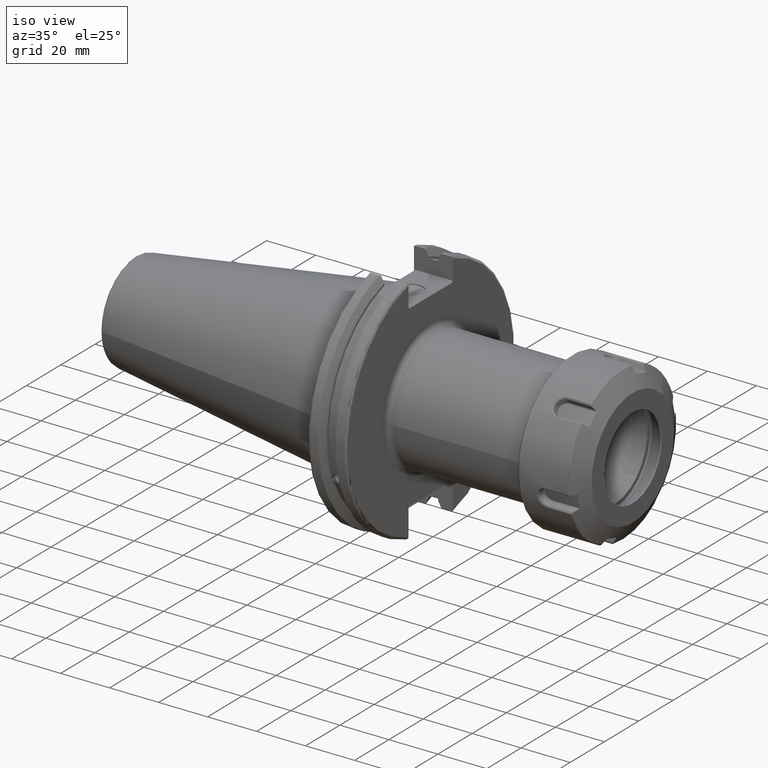
[diagram: clean part render]
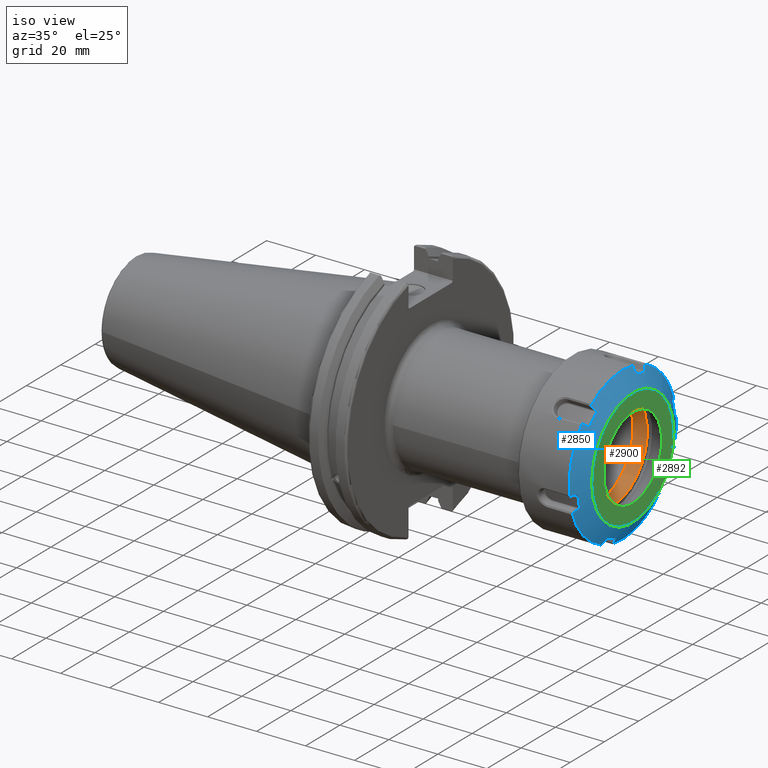
[diagram: same view with three faces highlighted in distinct colors, each labeled with its STEP entity id]
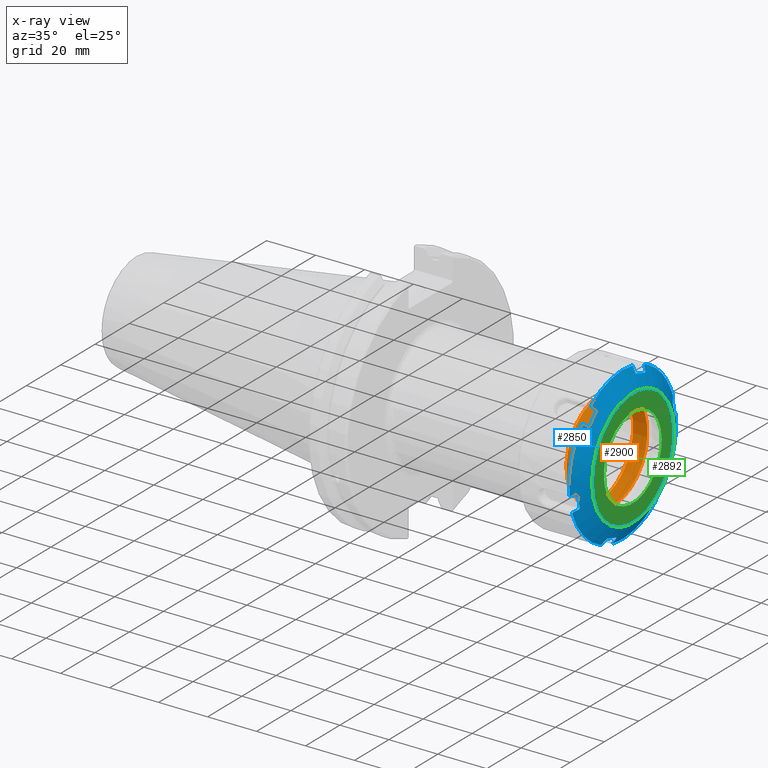
[diagram: x-ray of the same camera — body ghosted, the three highlighted faces saturated]
A machine part, iso view with three faces highlighted in distinct colors.
The next image is the same camera in x-ray (body ghosted, the three faces saturated) — at least one of them is partly hidden behind the body in this view.
Their STEP definitions:

[orange] entity #2900 — the highlighted cylindrical surface (bore or boss wall) has radius 19.45 mm, axis along (-1, 0, 0).
#311=CYLINDRICAL_SURFACE('',#3254,19.45);
#459=FACE_OUTER_BOUND('',#652,.T.);
#652=EDGE_LOOP('',(#2616,#2617,#2618,#2619));
#834=LINE('',#6354,#1010);
#1010=VECTOR('',#3962,19.45);
#1148=CIRCLE('',#3253,19.45);
#1149=CIRCLE('',#3255,19.45);
#1425=VERTEX_POINT('',#6350);
#1426=VERTEX_POINT('',#6353);
#1830=EDGE_CURVE('',#1425,#1425,#1148,.T.);
#1831=EDGE_CURVE('',#1425,#1426,#834,.T.);
#1832=EDGE_CURVE('',#1426,#1426,#1149,.T.);
#2616=ORIENTED_EDGE('',*,*,#1830,.F.);
#2617=ORIENTED_EDGE('',*,*,#1831,.T.);
#2618=ORIENTED_EDGE('',*,*,#1832,.T.);
#2619=ORIENTED_EDGE('',*,*,#1831,.F.);
#2900=ADVANCED_FACE('',(#459),#311,.F.);
#3253=AXIS2_PLACEMENT_3D('',#6351,#3958,#3959);
#3254=AXIS2_PLACEMENT_3D('',#6352,#3960,#3961);
#3255=AXIS2_PLACEMENT_3D('',#6355,#3963,#3964);
#3958=DIRECTION('center_axis',(-1.,0.,0.));
#3959=DIRECTION('ref_axis',(0.,-1.,0.));
#3960=DIRECTION('center_axis',(-1.,0.,0.));
#3961=DIRECTION('ref_axis',(0.,-1.,0.));
#3962=DIRECTION('',(-1.,0.,0.));
#3963=DIRECTION('center_axis',(-1.,0.,0.));
#3964=DIRECTION('ref_axis',(0.,-1.,0.));
#6350=CARTESIAN_POINT('',(5.05,19.45,-2.3819380243416E-15));
#6351=CARTESIAN_POINT('Origin',(5.05,0.,0.));
#6352=CARTESIAN_POINT('Origin',(5.05,0.,0.));
#6353=CARTESIAN_POINT('',(-0.750000000000001,19.45,-2.3819380243416E-15));
#6354=CARTESIAN_POINT('',(5.05,19.45,-2.3819380243416E-15));
#6355=CARTESIAN_POINT('Origin',(-0.75,0.,0.));

[blue] entity #2850 — the highlighted conical surface has half-angle 60 deg.
#218=B_SPLINE_CURVE_WITH_KNOTS('',3,(#5253,#5254,#5255,#5256,#5257),
 .UNSPECIFIED.,.F.,.F.,(4,1,4),(0.,0.5,1.),.UNSPECIFIED.);
#219=B_SPLINE_CURVE_WITH_KNOTS('',3,(#5259,#5260,#5261,#5262,#5263,#5264),
 .UNSPECIFIED.,.F.,.F.,(4,1,1,4),(0.,0.3333333333333,0.6666666666667,1.),
 .UNSPECIFIED.);
#220=B_SPLINE_CURVE_WITH_KNOTS('',3,(#5266,#5267,#5268,#5269,#5270,#5271,
#5272,#5273,#5274,#5275),.UNSPECIFIED.,.F.,.F.,(4,2,2,2,4),(0.00391072992557782,
0.0216953256467931,0.0433906512935862,0.0618817572266058,0.075987374068336),
 .UNSPECIFIED.);
#221=B_SPLINE_CURVE_WITH_KNOTS('',3,(#5277,#5278,#5279,#5280,#5281,#5282),
 .UNSPECIFIED.,.F.,.F.,(4,1,1,4),(0.,0.3333333333333,0.6666666666667,1.),
 .UNSPECIFIED.);
#222=B_SPLINE_CURVE_WITH_KNOTS('',3,(#5284,#5285,#5286,#5287,#5288,#5289,
#5290,#5291,#5292,#5293),.UNSPECIFIED.,.F.,.F.,(4,2,2,2,4),(0.249135864577889,
0.263241481419832,0.281732587352851,0.303427912999644,0.321212508720421),
 .UNSPECIFIED.);
#223=B_SPLINE_CURVE_WITH_KNOTS('',3,(#5295,#5296,#5297,#5298,#5299,#5300),
 .UNSPECIFIED.,.F.,.F.,(4,1,1,4),(0.,0.3333333333333,0.6666666666667,1.),
 .UNSPECIFIED.);
#224=B_SPLINE_CURVE_WITH_KNOTS('',3,(#5302,#5303,#5304,#5305,#5306),
 .UNSPECIFIED.,.F.,.F.,(4,1,4),(0.,0.5,1.),.UNSPECIFIED.);
#225=B_SPLINE_CURVE_WITH_KNOTS('',3,(#5310,#5311,#5312,#5313,#5314),
 .UNSPECIFIED.,.F.,.F.,(4,1,4),(0.,0.5,1.),.UNSPECIFIED.);
#226=B_SPLINE_CURVE_WITH_KNOTS('',3,(#5316,#5317,#5318,#5319,#5320,#5321),
 .UNSPECIFIED.,.F.,.F.,(4,1,1,4),(0.,0.3333333333333,0.6666666666667,1.),
 .UNSPECIFIED.);
#227=B_SPLINE_CURVE_WITH_KNOTS('',3,(#5323,#5324,#5325,#5326,#5327,#5328,
#5329,#5330,#5331,#5332),.UNSPECIFIED.,.F.,.F.,(4,2,2,2,4),(0.00391072992604875,
0.0216953256467931,0.0433906512935862,0.0618817572266058,0.075987374068452),
 .UNSPECIFIED.);
#228=B_SPLINE_CURVE_WITH_KNOTS('',3,(#5334,#5335,#5336,#5337,#5338,#5339),
 .UNSPECIFIED.,.F.,.F.,(4,1,1,4),(0.,0.3333333333333,0.6666666666667,1.),
 .UNSPECIFIED.);
#229=B_SPLINE_CURVE_WITH_KNOTS('',3,(#5341,#5342,#5343,#5344,#5345,#5346,
#5347,#5348,#5349,#5350),.UNSPECIFIED.,.F.,.F.,(4,2,2,2,4),(0.249135864577987,
0.263241481419832,0.281732587352852,0.303427912999645,0.321212508720389),
 .UNSPECIFIED.);
#230=B_SPLINE_CURVE_WITH_KNOTS('',3,(#5352,#5353,#5354,#5355,#5356,#5357),
 .UNSPECIFIED.,.F.,.F.,(4,1,1,4),(0.,0.3333333333333,0.6666666666667,1.),
 .UNSPECIFIED.);
#231=B_SPLINE_CURVE_WITH_KNOTS('',3,(#5359,#5360,#5361,#5362,#5363),
 .UNSPECIFIED.,.F.,.F.,(4,1,4),(0.,0.5,1.),.UNSPECIFIED.);
#232=B_SPLINE_CURVE_WITH_KNOTS('',3,(#5367,#5368,#5369,#5370,#5371),
 .UNSPECIFIED.,.F.,.F.,(4,1,4),(0.,0.5,1.),.UNSPECIFIED.);
#233=B_SPLINE_CURVE_WITH_KNOTS('',3,(#5373,#5374,#5375,#5376,#5377,#5378),
 .UNSPECIFIED.,.F.,.F.,(4,1,1,4),(0.,0.3333333333333,0.6666666666667,1.),
 .UNSPECIFIED.);
#234=B_SPLINE_CURVE_WITH_KNOTS('',3,(#5380,#5381,#5382,#5383,#5384,#5385,
#5386,#5387,#5388,#5389),.UNSPECIFIED.,.F.,.F.,(4,2,2,2,4),(0.00391072992601625,
0.0216953256467931,0.0433906512935863,0.0618817572266058,0.0759873740685485),
 .UNSPECIFIED.);
#235=B_SPLINE_CURVE_WITH_KNOTS('',3,(#5391,#5392,#5393,#5394,#5395,#5396),
 .UNSPECIFIED.,.F.,.F.,(4,1,1,4),(0.,0.3333333333333,0.6666666666667,1.),
 .UNSPECIFIED.);
#236=B_SPLINE_CURVE_WITH_KNOTS('',3,(#5398,#5399,#5400,#5401,#5402,#5403,
#5404,#5405,#5406,#5407),.UNSPECIFIED.,.F.,.F.,(4,2,2,2,4),(0.249135864578103,
0.263241481419833,0.281732587352852,0.303427912999645,0.321212508720861),
 .UNSPECIFIED.);
#237=B_SPLINE_CURVE_WITH_KNOTS('',3,(#5409,#5410,#5411,#5412,#5413,#5414),
 .UNSPECIFIED.,.F.,.F.,(4,1,1,4),(0.,0.3333333333333,0.6666666666667,1.),
 .UNSPECIFIED.);
#238=B_SPLINE_CURVE_WITH_KNOTS('',3,(#5415,#5416,#5417,#5418,#5419),
 .UNSPECIFIED.,.F.,.F.,(4,1,4),(0.,0.5,1.),.UNSPECIFIED.);
#239=B_SPLINE_CURVE_WITH_KNOTS('',3,(#5421,#5422,#5423,#5424,#5425),
 .UNSPECIFIED.,.F.,.F.,(4,1,4),(0.,0.5,1.),.UNSPECIFIED.);
#240=B_SPLINE_CURVE_WITH_KNOTS('',3,(#5427,#5428,#5429,#5430,#5431,#5432),
 .UNSPECIFIED.,.F.,.F.,(4,1,1,4),(0.,0.3333333333333,0.6666666666667,1.),
 .UNSPECIFIED.);
#241=B_SPLINE_CURVE_WITH_KNOTS('',3,(#5434,#5435,#5436,#5437,#5438,#5439,
#5440,#5441,#5442,#5443),.UNSPECIFIED.,.F.,.F.,(4,2,2,2,4),(0.00391072992557702,
0.0216953256467932,0.0433906512935864,0.0618817572266059,0.075987374068335),
 .UNSPECIFIED.);
#242=B_SPLINE_CURVE_WITH_KNOTS('',3,(#5445,#5446,#5447,#5448,#5449,#5450),
 .UNSPECIFIED.,.F.,.F.,(4,1,1,4),(0.,0.3333333333333,0.6666666666667,1.),
 .UNSPECIFIED.);
#243=B_SPLINE_CURVE_WITH_KNOTS('',3,(#5452,#5453,#5454,#5455,#5456,#5457,
#5458,#5459,#5460,#5461),.UNSPECIFIED.,.F.,.F.,(4,2,2,2,4),(0.249135864577889,
0.263241481419832,0.281732587352851,0.303427912999644,0.321212508720422),
 .UNSPECIFIED.);
#244=B_SPLINE_CURVE_WITH_KNOTS('',3,(#5463,#5464,#5465,#5466,#5467,#5468),
 .UNSPECIFIED.,.F.,.F.,(4,1,1,4),(0.,0.3333333333333,0.6666666666667,1.),
 .UNSPECIFIED.);
#245=B_SPLINE_CURVE_WITH_KNOTS('',3,(#5470,#5471,#5472,#5473,#5474),
 .UNSPECIFIED.,.F.,.F.,(4,1,4),(0.,0.5,1.),.UNSPECIFIED.);
#246=B_SPLINE_CURVE_WITH_KNOTS('',3,(#5478,#5479,#5480,#5481,#5482),
 .UNSPECIFIED.,.F.,.F.,(4,1,4),(0.,0.5,1.),.UNSPECIFIED.);
#247=B_SPLINE_CURVE_WITH_KNOTS('',3,(#5484,#5485,#5486,#5487,#5488,#5489),
 .UNSPECIFIED.,.F.,.F.,(4,1,1,4),(0.,0.3333333333333,0.6666666666667,1.),
 .UNSPECIFIED.);
#248=B_SPLINE_CURVE_WITH_KNOTS('',3,(#5491,#5492,#5493,#5494,#5495,#5496,
#5497,#5498,#5499,#5500),.UNSPECIFIED.,.F.,.F.,(4,2,2,2,4),(0.00391072992604798,
0.0216953256467931,0.0433906512935861,0.0618817572266057,0.0759873740684518),
 .UNSPECIFIED.);
#249=B_SPLINE_CURVE_WITH_KNOTS('',3,(#5502,#5503,#5504,#5505,#5506,#5507),
 .UNSPECIFIED.,.F.,.F.,(4,1,1,4),(0.,0.3333333333333,0.6666666666667,1.),
 .UNSPECIFIED.);
#250=B_SPLINE_CURVE_WITH_KNOTS('',3,(#5509,#5510,#5511,#5512,#5513,#5514,
#5515,#5516,#5517,#5518),.UNSPECIFIED.,.F.,.F.,(4,2,2,2,4),(0.249135864577987,
0.263241481419832,0.281732587352852,0.303427912999645,0.32121250872039),
 .UNSPECIFIED.);
#251=B_SPLINE_CURVE_WITH_KNOTS('',3,(#5520,#5521,#5522,#5523,#5524,#5525),
 .UNSPECIFIED.,.F.,.F.,(4,1,1,4),(0.,0.3333333333333,0.6666666666667,1.),
 .UNSPECIFIED.);
#252=B_SPLINE_CURVE_WITH_KNOTS('',3,(#5527,#5528,#5529,#5530,#5531),
 .UNSPECIFIED.,.F.,.F.,(4,1,4),(0.,0.5,1.),.UNSPECIFIED.);
#253=B_SPLINE_CURVE_WITH_KNOTS('',3,(#5535,#5536,#5537,#5538,#5539),
 .UNSPECIFIED.,.F.,.F.,(4,1,4),(0.,0.5,1.),.UNSPECIFIED.);
#254=B_SPLINE_CURVE_WITH_KNOTS('',3,(#5541,#5542,#5543,#5544,#5545,#5546),
 .UNSPECIFIED.,.F.,.F.,(4,1,1,4),(0.,0.3333333333333,0.6666666666667,1.),
 .UNSPECIFIED.);
#255=B_SPLINE_CURVE_WITH_KNOTS('',3,(#5548,#5549,#5550,#5551,#5552,#5553,
#5554,#5555,#5556,#5557),.UNSPECIFIED.,.F.,.F.,(4,2,2,2,4),(0.00391072992601611,
0.0216953256467933,0.0433906512935867,0.0618817572266061,0.0759873740685493),
 .UNSPECIFIED.);
#256=B_SPLINE_CURVE_WITH_KNOTS('',3,(#5559,#5560,#5561,#5562,#5563,#5564),
 .UNSPECIFIED.,.F.,.F.,(4,1,1,4),(0.,0.3333333333333,0.6666666666667,1.),
 .UNSPECIFIED.);
#257=B_SPLINE_CURVE_WITH_KNOTS('',3,(#5566,#5567,#5568,#5569,#5570,#5571,
#5572,#5573,#5574,#5575),.UNSPECIFIED.,.F.,.F.,(4,2,2,2,4),(0.249135864578103,
0.263241481419832,0.281732587352852,0.303427912999645,0.321212508720861),
 .UNSPECIFIED.);
#258=B_SPLINE_CURVE_WITH_KNOTS('',3,(#5577,#5578,#5579,#5580,#5581,#5582),
 .UNSPECIFIED.,.F.,.F.,(4,1,1,4),(0.,0.3333333333333,0.6666666666667,1.),
 .UNSPECIFIED.);
#259=B_SPLINE_CURVE_WITH_KNOTS('',3,(#5584,#5585,#5586,#5587,#5588),
 .UNSPECIFIED.,.F.,.F.,(4,1,4),(0.,0.5,1.),.UNSPECIFIED.);
#409=FACE_OUTER_BOUND('',#599,.T.);
#599=EDGE_LOOP('',(#2360,#2361,#2362,#2363,#2364,#2365,#2366,#2367,#2368,
#2369,#2370,#2371,#2372,#2373,#2374,#2375,#2376,#2377,#2378,#2379,#2380,
#2381,#2382,#2383,#2384,#2385,#2386,#2387,#2388,#2389,#2390,#2391,#2392,
#2393,#2394,#2395,#2396,#2397,#2398,#2399,#2400,#2401,#2402,#2403,#2404,
#2405,#2406,#2407,#2408,#2409,#2410,#2411));
#790=LINE('',#5591,#966);
#966=VECTOR('',#3784,27.62499999999);
#1120=CIRCLE('',#3180,31.25);
#1121=CIRCLE('',#3182,31.25);
#1122=CIRCLE('',#3183,31.25);
#1123=CIRCLE('',#3184,31.25);
#1124=CIRCLE('',#3185,31.25);
#1125=CIRCLE('',#3186,31.25);
#1126=CIRCLE('',#3187,31.25);
#1127=CIRCLE('',#3188,24.);
#1345=VERTEX_POINT('',#5229);
#1346=VERTEX_POINT('',#5230);
#1347=VERTEX_POINT('',#5249);
#1348=VERTEX_POINT('',#5250);
#1349=VERTEX_POINT('',#5252);
#1350=VERTEX_POINT('',#5258);
#1351=VERTEX_POINT('',#5265);
#1352=VERTEX_POINT('',#5276);
#1353=VERTEX_POINT('',#5283);
#1354=VERTEX_POINT('',#5294);
#1355=VERTEX_POINT('',#5301);
#1356=VERTEX_POINT('',#5307);
#1357=VERTEX_POINT('',#5309);
#1358=VERTEX_POINT('',#5315);
#1359=VERTEX_POINT('',#5322);
#1360=VERTEX_POINT('',#5333);
#1361=VERTEX_POINT('',#5340);
#1362=VERTEX_POINT('',#5351);
#1363=VERTEX_POINT('',#5358);
#1364=VERTEX_POINT('',#5364);
#1365=VERTEX_POINT('',#5366);
#1366=VERTEX_POINT('',#5372);
#1367=VERTEX_POINT('',#5379);
#1368=VERTEX_POINT('',#5390);
#1369=VERTEX_POINT('',#5397);
#1370=VERTEX_POINT('',#5408);
#1371=VERTEX_POINT('',#5420);
#1372=VERTEX_POINT('',#5426);
#1373=VERTEX_POINT('',#5433);
#1374=VERTEX_POINT('',#5444);
#1375=VERTEX_POINT('',#5451);
#1376=VERTEX_POINT('',#5462);
#1377=VERTEX_POINT('',#5469);
#1378=VERTEX_POINT('',#5475);
#1379=VERTEX_POINT('',#5477);
#1380=VERTEX_POINT('',#5483);
#1381=VERTEX_POINT('',#5490);
#1382=VERTEX_POINT('',#5501);
#1383=VERTEX_POINT('',#5508);
#1384=VERTEX_POINT('',#5519);
#1385=VERTEX_POINT('',#5526);
#1386=VERTEX_POINT('',#5532);
#1387=VERTEX_POINT('',#5534);
#1388=VERTEX_POINT('',#5540);
#1389=VERTEX_POINT('',#5547);
#1390=VERTEX_POINT('',#5558);
#1391=VERTEX_POINT('',#5565);
#1392=VERTEX_POINT('',#5576);
#1393=VERTEX_POINT('',#5583);
#1394=VERTEX_POINT('',#5590);
#1699=EDGE_CURVE('',#1345,#1346,#1120,.T.);
#1702=EDGE_CURVE('',#1347,#1348,#1121,.T.);
#1703=EDGE_CURVE('',#1347,#1349,#218,.T.);
#1704=EDGE_CURVE('',#1350,#1349,#219,.T.);
#1705=EDGE_CURVE('',#1350,#1351,#220,.T.);
#1706=EDGE_CURVE('',#1352,#1351,#221,.T.);
#1707=EDGE_CURVE('',#1352,#1353,#222,.T.);
#1708=EDGE_CURVE('',#1354,#1353,#223,.T.);
#1709=EDGE_CURVE('',#1354,#1355,#224,.T.);
#1710=EDGE_CURVE('',#1355,#1356,#1122,.T.);
#1711=EDGE_CURVE('',#1356,#1357,#225,.T.);
#1712=EDGE_CURVE('',#1358,#1357,#226,.T.);
#1713=EDGE_CURVE('',#1358,#1359,#227,.T.);
#1714=EDGE_CURVE('',#1360,#1359,#228,.T.);
#1715=EDGE_CURVE('',#1360,#1361,#229,.T.);
#1716=EDGE_CURVE('',#1362,#1361,#230,.T.);
#1717=EDGE_CURVE('',#1362,#1363,#231,.T.);
#1718=EDGE_CURVE('',#1363,#1364,#1123,.T.);
#1719=EDGE_CURVE('',#1364,#1365,#232,.T.);
#1720=EDGE_CURVE('',#1366,#1365,#233,.T.);
#1721=EDGE_CURVE('',#1366,#1367,#234,.T.);
#1722=EDGE_CURVE('',#1368,#1367,#235,.T.);
#1723=EDGE_CURVE('',#1368,#1369,#236,.T.);
#1724=EDGE_CURVE('',#1370,#1369,#237,.T.);
#1725=EDGE_CURVE('',#1370,#1346,#238,.T.);
#1726=EDGE_CURVE('',#1345,#1371,#239,.T.);
#1727=EDGE_CURVE('',#1372,#1371,#240,.T.);
#1728=EDGE_CURVE('',#1372,#1373,#241,.T.);
#1729=EDGE_CURVE('',#1374,#1373,#242,.T.);
#1730=EDGE_CURVE('',#1374,#1375,#243,.T.);
#1731=EDGE_CURVE('',#1376,#1375,#244,.T.);
#1732=EDGE_CURVE('',#1376,#1377,#245,.T.);
#1733=EDGE_CURVE('',#1377,#1378,#1124,.T.);
#1734=EDGE_CURVE('',#1378,#1379,#246,.T.);
#1735=EDGE_CURVE('',#1380,#1379,#247,.T.);
#1736=EDGE_CURVE('',#1380,#1381,#248,.T.);
#1737=EDGE_CURVE('',#1382,#1381,#249,.T.);
#1738=EDGE_CURVE('',#1382,#1383,#250,.T.);
#1739=EDGE_CURVE('',#1384,#1383,#251,.T.);
#1740=EDGE_CURVE('',#1384,#1385,#252,.T.);
#1741=EDGE_CURVE('',#1385,#1386,#1125,.T.);
#1742=EDGE_CURVE('',#1386,#1387,#253,.T.);
#1743=EDGE_CURVE('',#1388,#1387,#254,.T.);
#1744=EDGE_CURVE('',#1388,#1389,#255,.T.);
#1745=EDGE_CURVE('',#1390,#1389,#256,.T.);
#1746=EDGE_CURVE('',#1390,#1391,#257,.T.);
#1747=EDGE_CURVE('',#1392,#1391,#258,.T.);
#1748=EDGE_CURVE('',#1392,#1393,#259,.T.);
#1749=EDGE_CURVE('',#1348,#1393,#1126,.T.);
#1750=EDGE_CURVE('',#1348,#1394,#790,.T.);
#1751=EDGE_CURVE('',#1394,#1394,#1127,.T.);
#2360=ORIENTED_EDGE('',*,*,#1702,.F.);
#2361=ORIENTED_EDGE('',*,*,#1703,.T.);
#2362=ORIENTED_EDGE('',*,*,#1704,.F.);
#2363=ORIENTED_EDGE('',*,*,#1705,.T.);
#2364=ORIENTED_EDGE('',*,*,#1706,.F.);
#2365=ORIENTED_EDGE('',*,*,#1707,.T.);
#2366=ORIENTED_EDGE('',*,*,#1708,.F.);
#2367=ORIENTED_EDGE('',*,*,#1709,.T.);
#2368=ORIENTED_EDGE('',*,*,#1710,.T.);
#2369=ORIENTED_EDGE('',*,*,#1711,.T.);
#2370=ORIENTED_EDGE('',*,*,#1712,.F.);
#2371=ORIENTED_EDGE('',*,*,#1713,.T.);
#2372=ORIENTED_EDGE('',*,*,#1714,.F.);
#2373=ORIENTED_EDGE('',*,*,#1715,.T.);
#2374=ORIENTED_EDGE('',*,*,#1716,.F.);
#2375=ORIENTED_EDGE('',*,*,#1717,.T.);
#2376=ORIENTED_EDGE('',*,*,#1718,.T.);
#2377=ORIENTED_EDGE('',*,*,#1719,.T.);
#2378=ORIENTED_EDGE('',*,*,#1720,.F.);
#2379=ORIENTED_EDGE('',*,*,#1721,.T.);
#2380=ORIENTED_EDGE('',*,*,#1722,.F.);
#2381=ORIENTED_EDGE('',*,*,#1723,.T.);
#2382=ORIENTED_EDGE('',*,*,#1724,.F.);
#2383=ORIENTED_EDGE('',*,*,#1725,.T.);
#2384=ORIENTED_EDGE('',*,*,#1699,.F.);
#2385=ORIENTED_EDGE('',*,*,#1726,.T.);
#2386=ORIENTED_EDGE('',*,*,#1727,.F.);
#2387=ORIENTED_EDGE('',*,*,#1728,.T.);
#2388=ORIENTED_EDGE('',*,*,#1729,.F.);
#2389=ORIENTED_EDGE('',*,*,#1730,.T.);
#2390=ORIENTED_EDGE('',*,*,#1731,.F.);
#2391=ORIENTED_EDGE('',*,*,#1732,.T.);
#2392=ORIENTED_EDGE('',*,*,#1733,.T.);
#2393=ORIENTED_EDGE('',*,*,#1734,.T.);
#2394=ORIENTED_EDGE('',*,*,#1735,.F.);
#2395=ORIENTED_EDGE('',*,*,#1736,.T.);
#2396=ORIENTED_EDGE('',*,*,#1737,.F.);
#2397=ORIENTED_EDGE('',*,*,#1738,.T.);
#2398=ORIENTED_EDGE('',*,*,#1739,.F.);
#2399=ORIENTED_EDGE('',*,*,#1740,.T.);
#2400=ORIENTED_EDGE('',*,*,#1741,.T.);
#2401=ORIENTED_EDGE('',*,*,#1742,.T.);
#2402=ORIENTED_EDGE('',*,*,#1743,.F.);
#2403=ORIENTED_EDGE('',*,*,#1744,.T.);
#2404=ORIENTED_EDGE('',*,*,#1745,.F.);
#2405=ORIENTED_EDGE('',*,*,#1746,.T.);
#2406=ORIENTED_EDGE('',*,*,#1747,.F.);
#2407=ORIENTED_EDGE('',*,*,#1748,.T.);
#2408=ORIENTED_EDGE('',*,*,#1749,.F.);
#2409=ORIENTED_EDGE('',*,*,#1750,.T.);
#2410=ORIENTED_EDGE('',*,*,#1751,.F.);
#2411=ORIENTED_EDGE('',*,*,#1750,.F.);
#2751=CONICAL_SURFACE('',#3181,27.62499999999,1.0471975511966);
#2850=ADVANCED_FACE('',(#409),#2751,.T.);
#3180=AXIS2_PLACEMENT_3D('',#5231,#3768,#3769);
#3181=AXIS2_PLACEMENT_3D('',#5248,#3770,#3771);
#3182=AXIS2_PLACEMENT_3D('',#5251,#3772,#3773);
#3183=AXIS2_PLACEMENT_3D('',#5308,#3774,#3775);
#3184=AXIS2_PLACEMENT_3D('',#5365,#3776,#3777);
#3185=AXIS2_PLACEMENT_3D('',#5476,#3778,#3779);
#3186=AXIS2_PLACEMENT_3D('',#5533,#3780,#3781);
#3187=AXIS2_PLACEMENT_3D('',#5589,#3782,#3783);
#3188=AXIS2_PLACEMENT_3D('',#5592,#3785,#3786);
#3768=DIRECTION('center_axis',(-1.,0.,0.));
#3769=DIRECTION('ref_axis',(0.,2.455899008826E-11,-1.));
#3770=DIRECTION('center_axis',(-1.,0.,0.));
#3771=DIRECTION('ref_axis',(0.,0.,-1.));
#3772=DIRECTION('center_axis',(-1.,0.,0.));
#3773=DIRECTION('ref_axis',(0.,-0.394688403095903,0.918815032779507));
#3774=DIRECTION('center_axis',(1.,0.,0.));
#3775=DIRECTION('ref_axis',(0.,-0.598372958218185,0.801217700049879));
#3776=DIRECTION('center_axis',(1.,0.,0.));
#3777=DIRECTION('ref_axis',(0.,-0.993061361314034,-0.117597332729604));
#3778=DIRECTION('center_axis',(1.,0.,0.));
#3779=DIRECTION('ref_axis',(0.,0.598372958218185,-0.801217700049879));
#3780=DIRECTION('center_axis',(1.,0.,0.));
#3781=DIRECTION('ref_axis',(0.,0.993061361314034,0.117597332729604));
#3782=DIRECTION('center_axis',(-1.,0.,0.));
#3783=DIRECTION('ref_axis',(0.,-0.394688403095903,0.918815032779507));
#3784=DIRECTION('',(0.5,-1.06057523872491E-16,-0.866025403784439));
#3785=DIRECTION('center_axis',(1.,0.,0.));
#3786=DIRECTION('ref_axis',(0.,0.,1.));
#5229=CARTESIAN_POINT('',(8.564210548375,12.33401259675,-28.71296977436));
#5230=CARTESIAN_POINT('',(8.564210548375,-12.33401259675,-28.71296977436));
#5231=CARTESIAN_POINT('Origin',(8.564210548375,1.234443973541E-14,0.));
#5248=CARTESIAN_POINT('Origin',(10.6571052742,1.234443973541E-14,0.));
#5249=CARTESIAN_POINT('',(8.564210548375,-12.33401259675,28.71296977436));
#5250=CARTESIAN_POINT('',(8.56421054837923,1.6171460982746E-14,31.2500000000045));
#5251=CARTESIAN_POINT('Origin',(8.564210548375,1.234443973541E-14,0.));
#5252=CARTESIAN_POINT('',(8.692310057583,-12.46455901979,28.41442095568));
#5253=CARTESIAN_POINT('Ctrl Pts',(8.564210548375,-12.33401259675,28.71296977436));
#5254=CARTESIAN_POINT('Ctrl Pts',(8.585754667561,-12.35587845273,28.66296437918));
#5255=CARTESIAN_POINT('Ctrl Pts',(8.628648493396,-12.39950207942,28.56320077087));
#5256=CARTESIAN_POINT('Ctrl Pts',(8.671154125862,-12.44290943521,28.46393175613));
#5257=CARTESIAN_POINT('Ctrl Pts',(8.692310057583,-12.46455901979,28.41442095568));
#5258=CARTESIAN_POINT('',(9.819366088588,-11.79541827671,26.57597187362));
#5259=CARTESIAN_POINT('Ctrl Pts',(9.819366088588,-11.79541827671,26.57597187362));
#5260=CARTESIAN_POINT('Ctrl Pts',(9.695618002269,-11.86889927294,26.77785925153));
#5261=CARTESIAN_POINT('Ctrl Pts',(9.447134475167,-12.01643987048,27.18322371173));
#5262=CARTESIAN_POINT('Ctrl Pts',(9.071443925176,-12.23948943061,27.79604734159));
#5263=CARTESIAN_POINT('Ctrl Pts',(8.819016266955,-12.38934317116,28.20776710997));
#5264=CARTESIAN_POINT('Ctrl Pts',(8.692310057583,-12.46455901979,28.41442095568));
#5265=CARTESIAN_POINT('',(10.08461556535,-12.0152645871,25.97194910006));
#5266=CARTESIAN_POINT('Ctrl Pts',(9.81936608859121,-11.7954182767103,26.5759718736218));
#5267=CARTESIAN_POINT('Ctrl Pts',(9.84967734944193,-11.7774196012497,26.5265209192167));
#5268=CARTESIAN_POINT('Ctrl Pts',(9.88117393407767,-11.7665978772285,26.4716423706257));
#5269=CARTESIAN_POINT('Ctrl Pts',(9.9471335364265,-11.7639010935977,26.3477788044782));
#5270=CARTESIAN_POINT('Ctrl Pts',(9.98071243271829,-11.7769378903239,26.2782649782907));
#5271=CARTESIAN_POINT('Ctrl Pts',(10.0302355972456,-11.8239630582421,26.1630262231733));
#5272=CARTESIAN_POINT('Ctrl Pts',(10.0508461046287,-11.8574947477832,26.1086774041364));
#5273=CARTESIAN_POINT('Ctrl Pts',(10.0753423636963,-11.9344855401506,26.026876902305));
#5274=CARTESIAN_POINT('Ctrl Pts',(10.0821136841068,-11.9736466814781,25.9959772090718));
#5275=CARTESIAN_POINT('Ctrl Pts',(10.0846155653589,-12.0152645870986,25.9719491000586));
#5276=CARTESIAN_POINT('',(10.08461556535,-16.4847354129,23.39149891565));
#5277=CARTESIAN_POINT('Ctrl Pts',(10.08461556535,-16.4847354129,23.39149891565));
#5278=CARTESIAN_POINT('Ctrl Pts',(10.11446714737,-15.98816495339,23.67819400412));
#5279=CARTESIAN_POINT('Ctrl Pts',(10.15441839857,-14.9950043063,24.25159557107));
#5280=CARTESIAN_POINT('Ctrl Pts',(10.15441825606,-13.50499019773,25.11185561775));
#5281=CARTESIAN_POINT('Ctrl Pts',(10.11446700596,-12.51183269442,25.68525536963));
#5282=CARTESIAN_POINT('Ctrl Pts',(10.08461556535,-12.0152645871,25.97194910006));
#5283=CARTESIAN_POINT('',(9.819366088588,-17.11775763446,23.5031178127));
#5284=CARTESIAN_POINT('Ctrl Pts',(10.0846155653584,-16.4847354128994,23.3914989156481));
#5285=CARTESIAN_POINT('Ctrl Pts',(10.0821136841064,-16.5263533185205,23.3674708066346));
#5286=CARTESIAN_POINT('Ctrl Pts',(10.0753423636959,-16.572693808494,23.3490061100199));
#5287=CARTESIAN_POINT('Ctrl Pts',(10.0508461046282,-16.6820305173067,23.3232303788877));
#5288=CARTESIAN_POINT('Ctrl Pts',(10.030235597245,-16.745863820029,23.3213654934318));
#5289=CARTESIAN_POINT('Ctrl Pts',(9.9807124327177,-16.8691760934203,23.3382598809561));
#5290=CARTESIAN_POINT('Ctrl Pts',(9.94713353642591,-16.935895231176,23.361726596901));
#5291=CARTESIAN_POINT('Ctrl Pts',(9.88117393407782,-17.0418158342465,23.4259938631068));
#5292=CARTESIAN_POINT('Ctrl Pts',(9.84967734944289,-17.0839311894376,23.4628050253163));
#5293=CARTESIAN_POINT('Ctrl Pts',(9.81936608859286,-17.1177576344631,23.503117812701));
#5294=CARTESIAN_POINT('',(8.692310057583,-18.37533087155,25.00183523595));
#5295=CARTESIAN_POINT('Ctrl Pts',(8.692310057583,-18.37533087155,25.00183523595));
#5296=CARTESIAN_POINT('Ctrl Pts',(8.818984634961,-18.23400660587,24.83341153461));
#5297=CARTESIAN_POINT('Ctrl Pts',(9.071370123408,-17.95242075039,24.49783057972));
#5298=CARTESIAN_POINT('Ctrl Pts',(9.447060850792,-17.53322451115,23.9982519556));
#5299=CARTESIAN_POINT('Ctrl Pts',(9.695586451921,-17.25589194355,23.66773987181));
#5300=CARTESIAN_POINT('Ctrl Pts',(9.819366088588,-17.11775763446,23.5031178127));
#5301=CARTESIAN_POINT('',(8.564210548375,-18.69915494432,25.03805312656));
#5302=CARTESIAN_POINT('Ctrl Pts',(8.692310057583,-18.37533087155,25.00183523595));
#5303=CARTESIAN_POINT('Ctrl Pts',(8.67114013399,-18.42906879188,25.00784551833));
#5304=CARTESIAN_POINT('Ctrl Pts',(8.628620408783,-18.53677743628,25.01989212088));
#5305=CARTESIAN_POINT('Ctrl Pts',(8.585740575441,-18.64495155169,25.03199078373));
#5306=CARTESIAN_POINT('Ctrl Pts',(8.564210548375,-18.69915494432,25.03805312656));
#5307=CARTESIAN_POINT('',(8.564210548375,-31.03316754106,3.674916647801));
#5308=CARTESIAN_POINT('Origin',(8.564210548375,0.,0.));
#5309=CARTESIAN_POINT('',(8.692310057583,-30.83988989134,3.41258571973));
#5310=CARTESIAN_POINT('Ctrl Pts',(8.564210548375,-31.03316754106,3.674916647801));
#5311=CARTESIAN_POINT('Ctrl Pts',(8.585707138203,-31.00086594593,3.63107449925));
#5312=CARTESIAN_POINT('Ctrl Pts',(8.628553770502,-30.93635143832,3.543510568928));
#5313=CARTESIAN_POINT('Ctrl Pts',(8.671106934616,-30.87201420827,3.456187252992));
#5314=CARTESIAN_POINT('Ctrl Pts',(8.692310057583,-30.83988989134,3.41258571973));
#5315=CARTESIAN_POINT('',(9.819366088588,-28.91317591117,3.072854060917));
#5316=CARTESIAN_POINT('Ctrl Pts',(9.819366088588,-28.91317591117,3.072854060917));
#5317=CARTESIAN_POINT('Ctrl Pts',(9.695618003236,-29.1247560056,3.110161340148));
#5318=CARTESIAN_POINT('Ctrl Pts',(9.447134477423,-29.5495822225,3.185069664299));
#5319=CARTESIAN_POINT('Ctrl Pts',(9.071443927428,-30.19182783406,3.298314893859));
#5320=CARTESIAN_POINT('Ctrl Pts',(8.81901626792,-30.6233144852,3.37439763227));
#5321=CARTESIAN_POINT('Ctrl Pts',(8.692310057583,-30.83988989134,3.41258571973));
#5322=CARTESIAN_POINT('',(10.08461556535,-28.5,2.580450184411));
#5323=CARTESIAN_POINT('Ctrl Pts',(9.81936608859145,-28.9131759111718,3.07285406091804));
#5324=CARTESIAN_POINT('Ctrl Pts',(9.84967734944143,-28.8613507906866,3.0637158938986));
#5325=CARTESIAN_POINT('Ctrl Pts',(9.88117393407629,-28.8084137114749,3.04564850751846));
#5326=CARTESIAN_POINT('Ctrl Pts',(9.94713353642432,-28.6997963247737,2.98605220757819));
#5327=CARTESIAN_POINT('Ctrl Pts',(9.98071243271612,-28.6461139837442,2.94000509733561));
#5328=CARTESIAN_POINT('Ctrl Pts',(10.0302355972434,-28.5698268782711,2.84166072974249));
#5329=CARTESIAN_POINT('Ctrl Pts',(10.0508461046266,-28.53952526509,2.78544702524961));
#5330=CARTESIAN_POINT('Ctrl Pts',(10.0753423636942,-28.5071793486453,2.67787079228586));
#5331=CARTESIAN_POINT('Ctrl Pts',(10.0821136841048,-28.5,2.62850640243802));
#5332=CARTESIAN_POINT('Ctrl Pts',(10.0846155653567,-28.5,2.58045018441135));
#5333=CARTESIAN_POINT('',(10.08461556535,-28.5,-2.580450184411));
#5334=CARTESIAN_POINT('Ctrl Pts',(10.08461556535,-28.5,-2.580450184411));
#5335=CARTESIAN_POINT('Ctrl Pts',(10.11446714736,-28.5,-2.007060007513));
#5336=CARTESIAN_POINT('Ctrl Pts',(10.15441839857,-28.5,-0.8602568736807));
#5337=CARTESIAN_POINT('Ctrl Pts',(10.15441825606,-28.5,0.8602632198779));
#5338=CARTESIAN_POINT('Ctrl Pts',(10.11446700596,-28.5,2.007062723588));
#5339=CARTESIAN_POINT('Ctrl Pts',(10.08461556535,-28.5,2.580450184411));
#5340=CARTESIAN_POINT('',(9.819366088588,-28.91317591117,-3.072854060917));
#5341=CARTESIAN_POINT('Ctrl Pts',(10.0846155653567,-28.5,-2.58045018441136));
#5342=CARTESIAN_POINT('Ctrl Pts',(10.0821136841048,-28.5,-2.62850640243802));
#5343=CARTESIAN_POINT('Ctrl Pts',(10.0753423636942,-28.5071793486453,-2.67787079228586));
#5344=CARTESIAN_POINT('Ctrl Pts',(10.0508461046266,-28.53952526509,-2.78544702524961));
#5345=CARTESIAN_POINT('Ctrl Pts',(10.0302355972434,-28.5698268782711,-2.84166072974249));
#5346=CARTESIAN_POINT('Ctrl Pts',(9.98071243271612,-28.6461139837442,-2.94000509733561));
#5347=CARTESIAN_POINT('Ctrl Pts',(9.94713353642432,-28.6997963247737,-2.98605220757819));
#5348=CARTESIAN_POINT('Ctrl Pts',(9.88117393407629,-28.8084137114749,-3.04564850751846));
#5349=CARTESIAN_POINT('Ctrl Pts',(9.84967734944143,-28.8613507906866,-3.0637158938986));
#5350=CARTESIAN_POINT('Ctrl Pts',(9.81936608859145,-28.9131759111718,-3.07285406091804));
#5351=CARTESIAN_POINT('',(8.692310057583,-30.83988989134,-3.41258571973));
#5352=CARTESIAN_POINT('Ctrl Pts',(8.692310057583,-30.83988989134,-3.41258571973));
#5353=CARTESIAN_POINT('Ctrl Pts',(8.818984635918,-30.6233685529,-3.374407165864));
#5354=CARTESIAN_POINT('Ctrl Pts',(9.071370125642,-30.19195399102,-3.298337138734));
#5355=CARTESIAN_POINT('Ctrl Pts',(9.44706085303,-29.54970809172,-3.185091858438));
#5356=CARTESIAN_POINT('Ctrl Pts',(9.69558645288,-29.12480994929,-3.110170851874));
#5357=CARTESIAN_POINT('Ctrl Pts',(9.819366088588,-28.91317591117,-3.072854060917));
#5358=CARTESIAN_POINT('',(8.564210548375,-31.03316754106,-3.674916647801));
#5359=CARTESIAN_POINT('Ctrl Pts',(8.692310057583,-30.83988989134,-3.41258571973));
#5360=CARTESIAN_POINT('Ctrl Pts',(8.671140365126,-30.87196355854,-3.456118507387));
#5361=CARTESIAN_POINT('Ctrl Pts',(8.628620872724,-30.93625019478,-3.543373153588));
#5362=CARTESIAN_POINT('Ctrl Pts',(8.585740808234,-31.00081535205,-3.631005829452));
#5363=CARTESIAN_POINT('Ctrl Pts',(8.564210548375,-31.03316754106,-3.674916647801));
#5364=CARTESIAN_POINT('',(8.564210548375,-18.69915494432,-25.03805312656));
#5365=CARTESIAN_POINT('Origin',(8.564210548375,0.,0.));
#5366=CARTESIAN_POINT('',(8.692310057583,-18.37533087155,-25.00183523595));
#5367=CARTESIAN_POINT('Ctrl Pts',(8.564210548375,-18.69915494432,-25.03805312656));
#5368=CARTESIAN_POINT('Ctrl Pts',(8.585761912228,-18.6448978348,-25.0319847758));
#5369=CARTESIAN_POINT('Ctrl Pts',(8.628662931494,-18.53666994317,-25.01988009839));
#5370=CARTESIAN_POINT('Ctrl Pts',(8.671161318992,-18.42901501568,-25.00783950377));
#5371=CARTESIAN_POINT('Ctrl Pts',(8.692310057583,-18.37533087155,-25.00183523595));
#5372=CARTESIAN_POINT('',(9.819366088588,-17.11775763446,-23.5031178127));
#5373=CARTESIAN_POINT('Ctrl Pts',(9.819366088588,-17.11775763446,-23.5031178127));
#5374=CARTESIAN_POINT('Ctrl Pts',(9.695618489655,-17.25585619041,-23.66769726288));
#5375=CARTESIAN_POINT('Ctrl Pts',(9.447135612516,-17.53314108674,-23.99815253426));
#5376=CARTESIAN_POINT('Ctrl Pts',(9.071445066039,-17.95233713441,-24.49773093007));
#5377=CARTESIAN_POINT('Ctrl Pts',(8.819016755941,-18.23397077016,-24.83336882727));
#5378=CARTESIAN_POINT('Ctrl Pts',(8.692310057583,-18.37533087155,-25.00183523595));
#5379=CARTESIAN_POINT('',(10.08461556535,-16.4847354129,-23.39149891565));
#5380=CARTESIAN_POINT('Ctrl Pts',(9.81936608859287,-17.1177576344631,-23.503117812701));
#5381=CARTESIAN_POINT('Ctrl Pts',(9.8496773494429,-17.0839311894376,-23.4628050253163));
#5382=CARTESIAN_POINT('Ctrl Pts',(9.88117393407782,-17.0418158342465,-23.4259938631068));
#5383=CARTESIAN_POINT('Ctrl Pts',(9.94713353642591,-16.935895231176,-23.361726596901));
#5384=CARTESIAN_POINT('Ctrl Pts',(9.9807124327177,-16.8691760934203,-23.3382598809561));
#5385=CARTESIAN_POINT('Ctrl Pts',(10.030235597245,-16.745863820029,-23.3213654934318));
#5386=CARTESIAN_POINT('Ctrl Pts',(10.0508461046281,-16.6820305173067,-23.3232303788877));
#5387=CARTESIAN_POINT('Ctrl Pts',(10.0753423636959,-16.572693808494,-23.3490061100199));
#5388=CARTESIAN_POINT('Ctrl Pts',(10.0821136841064,-16.5263533185206,-23.3674708066346));
#5389=CARTESIAN_POINT('Ctrl Pts',(10.0846155653584,-16.4847354128994,-23.3914989156481));
#5390=CARTESIAN_POINT('',(10.08461556535,-12.0152645871,-25.97194910006));
#5391=CARTESIAN_POINT('Ctrl Pts',(10.08461556535,-12.0152645871,-25.97194910006));
#5392=CARTESIAN_POINT('Ctrl Pts',(10.11446714736,-12.51183504657,-25.68525401161));
#5393=CARTESIAN_POINT('Ctrl Pts',(10.15441839857,-13.50499569361,-25.1118524447));
#5394=CARTESIAN_POINT('Ctrl Pts',(10.15441825606,-14.99500980236,-24.25159239792));
#5395=CARTESIAN_POINT('Ctrl Pts',(10.11446700596,-15.98816730562,-23.67819264606));
#5396=CARTESIAN_POINT('Ctrl Pts',(10.08461556535,-16.4847354129,-23.39149891565));
#5397=CARTESIAN_POINT('',(9.819366088588,-11.79541827671,-26.57597187362));
#5398=CARTESIAN_POINT('Ctrl Pts',(10.0846155653589,-12.0152645870986,-25.9719491000586));
#5399=CARTESIAN_POINT('Ctrl Pts',(10.0821136841068,-11.9736466814781,-25.9959772090719));
#5400=CARTESIAN_POINT('Ctrl Pts',(10.0753423636963,-11.9344855401506,-26.026876902305));
#5401=CARTESIAN_POINT('Ctrl Pts',(10.0508461046287,-11.8574947477832,-26.1086774041364));
#5402=CARTESIAN_POINT('Ctrl Pts',(10.0302355972456,-11.8239630582421,-26.1630262231733));
#5403=CARTESIAN_POINT('Ctrl Pts',(9.98071243271829,-11.7769378903239,-26.2782649782907));
#5404=CARTESIAN_POINT('Ctrl Pts',(9.9471335364265,-11.7639010935977,-26.3477788044782));
#5405=CARTESIAN_POINT('Ctrl Pts',(9.88117393407767,-11.7665978772285,-26.4716423706257));
#5406=CARTESIAN_POINT('Ctrl Pts',(9.84967734944193,-11.7774196012497,-26.5265209192167));
#5407=CARTESIAN_POINT('Ctrl Pts',(9.81936608859121,-11.7954182767103,-26.5759718736219));
#5408=CARTESIAN_POINT('',(8.692310057583,-12.46455901979,-28.41442095568));
#5409=CARTESIAN_POINT('Ctrl Pts',(8.692310057583,-12.46455901979,-28.41442095568));
#5410=CARTESIAN_POINT('Ctrl Pts',(8.818985113606,-12.38936166453,-28.2078179201));
#5411=CARTESIAN_POINT('Ctrl Pts',(9.071371240147,-12.23953258147,-27.79616589762));
#5412=CARTESIAN_POINT('Ctrl Pts',(9.447061964272,-12.01648292327,-27.1833419983));
#5413=CARTESIAN_POINT('Ctrl Pts',(9.695586929079,-11.86891772405,-26.77790994552));
#5414=CARTESIAN_POINT('Ctrl Pts',(9.819366088588,-11.79541827671,-26.57597187362));
#5415=CARTESIAN_POINT('Ctrl Pts',(8.692310057583,-12.46455901979,-28.41442095568));
#5416=CARTESIAN_POINT('Ctrl Pts',(8.671155719812,-12.44291106636,-28.46392802584));
#5417=CARTESIAN_POINT('Ctrl Pts',(8.628651692785,-12.39950533991,-28.5631933144));
#5418=CARTESIAN_POINT('Ctrl Pts',(8.585756272932,-12.35588008208,-28.662960653));
#5419=CARTESIAN_POINT('Ctrl Pts',(8.564210548375,-12.33401259675,-28.71296977436));
#5420=CARTESIAN_POINT('',(8.692310057583,12.46455901979,-28.41442095568));
#5421=CARTESIAN_POINT('Ctrl Pts',(8.564210548375,12.33401259675,-28.71296977436));
#5422=CARTESIAN_POINT('Ctrl Pts',(8.585756390059,12.35588020095,-28.66296038114));
#5423=CARTESIAN_POINT('Ctrl Pts',(8.628651926211,12.39950557779,-28.56319277038));
#5424=CARTESIAN_POINT('Ctrl Pts',(8.671155836106,12.44291118536,-28.46392775368));
#5425=CARTESIAN_POINT('Ctrl Pts',(8.692310057583,12.46455901979,-28.41442095568));
#5426=CARTESIAN_POINT('',(9.819366088588,11.79541827671,-26.57597187362));
#5427=CARTESIAN_POINT('Ctrl Pts',(9.819366088588,11.79541827671,-26.57597187362));
#5428=CARTESIAN_POINT('Ctrl Pts',(9.695618489655,11.86889898353,-26.77785845639));
#5429=CARTESIAN_POINT('Ctrl Pts',(9.447135612516,12.01643919519,-27.18322185638));
#5430=CARTESIAN_POINT('Ctrl Pts',(9.071445066039,12.23948875331,-27.79604548073));
#5431=CARTESIAN_POINT('Ctrl Pts',(8.819016755941,12.38934288088,-28.20776631245));
#5432=CARTESIAN_POINT('Ctrl Pts',(8.692310057583,12.46455901979,-28.41442095568));
#5433=CARTESIAN_POINT('',(10.08461556535,12.0152645871,-25.97194910006));
#5434=CARTESIAN_POINT('Ctrl Pts',(9.81936608859122,11.7954182767103,-26.5759718736218));
#5435=CARTESIAN_POINT('Ctrl Pts',(9.84967734944194,11.7774196012497,-26.5265209192167));
#5436=CARTESIAN_POINT('Ctrl Pts',(9.88117393407768,11.7665978772285,-26.4716423706257));
#5437=CARTESIAN_POINT('Ctrl Pts',(9.94713353642651,11.7639010935977,-26.3477788044782));
#5438=CARTESIAN_POINT('Ctrl Pts',(9.9807124327183,11.7769378903239,-26.2782649782907));
#5439=CARTESIAN_POINT('Ctrl Pts',(10.0302355972456,11.8239630582421,-26.1630262231733));
#5440=CARTESIAN_POINT('Ctrl Pts',(10.0508461046288,11.8574947477832,-26.1086774041363));
#5441=CARTESIAN_POINT('Ctrl Pts',(10.0753423636963,11.9344855401506,-26.026876902305));
#5442=CARTESIAN_POINT('Ctrl Pts',(10.0821136841068,11.9736466814781,-25.9959772090718));
#5443=CARTESIAN_POINT('Ctrl Pts',(10.0846155653589,12.0152645870986,-25.9719491000586));
#5444=CARTESIAN_POINT('',(10.08461556535,16.4847354129,-23.39149891565));
#5445=CARTESIAN_POINT('Ctrl Pts',(10.08461556535,16.4847354129,-23.39149891565));
#5446=CARTESIAN_POINT('Ctrl Pts',(10.11446714736,15.98816495343,-23.6781940041));
#5447=CARTESIAN_POINT('Ctrl Pts',(10.15441839857,14.99500430639,-24.25159557102));
#5448=CARTESIAN_POINT('Ctrl Pts',(10.15441825606,13.50499019764,-25.1118556178));
#5449=CARTESIAN_POINT('Ctrl Pts',(10.11446700596,12.51183269438,-25.68525536965));
#5450=CARTESIAN_POINT('Ctrl Pts',(10.08461556535,12.0152645871,-25.97194910006));
#5451=CARTESIAN_POINT('',(9.819366088588,17.11775763446,-23.5031178127));
#5452=CARTESIAN_POINT('Ctrl Pts',(10.0846155653584,16.4847354128994,-23.3914989156481));
#5453=CARTESIAN_POINT('Ctrl Pts',(10.0821136841064,16.5263533185206,-23.3674708066346));
#5454=CARTESIAN_POINT('Ctrl Pts',(10.0753423636959,16.572693808494,-23.3490061100199));
#5455=CARTESIAN_POINT('Ctrl Pts',(10.0508461046282,16.6820305173067,-23.3232303788877));
#5456=CARTESIAN_POINT('Ctrl Pts',(10.030235597245,16.745863820029,-23.3213654934318));
#5457=CARTESIAN_POINT('Ctrl Pts',(9.98071243271771,16.8691760934203,-23.3382598809561));
#5458=CARTESIAN_POINT('Ctrl Pts',(9.94713353642591,16.935895231176,-23.361726596901));
#5459=CARTESIAN_POINT('Ctrl Pts',(9.88117393407783,17.0418158342465,-23.4259938631068));
#5460=CARTESIAN_POINT('Ctrl Pts',(9.8496773494429,17.0839311894376,-23.4628050253163));
#5461=CARTESIAN_POINT('Ctrl Pts',(9.81936608859287,17.1177576344631,-23.503117812701));
#5462=CARTESIAN_POINT('',(8.692310057583,18.37533087155,-25.00183523595));
#5463=CARTESIAN_POINT('Ctrl Pts',(8.692310057583,18.37533087155,-25.00183523595));
#5464=CARTESIAN_POINT('Ctrl Pts',(8.818985113606,18.23400607187,-24.83341089821));
#5465=CARTESIAN_POINT('Ctrl Pts',(9.071371240147,17.95241950441,-24.49782909481));
#5466=CARTESIAN_POINT('Ctrl Pts',(9.447061964272,17.53322326865,-23.99825047485));
#5467=CARTESIAN_POINT('Ctrl Pts',(9.695586929079,17.25589141105,-23.66773923721));
#5468=CARTESIAN_POINT('Ctrl Pts',(9.819366088588,17.11775763446,-23.5031178127));
#5469=CARTESIAN_POINT('',(8.564210548375,18.69915494432,-25.03805312656));
#5470=CARTESIAN_POINT('Ctrl Pts',(8.692310057583,18.37533087155,-25.00183523595));
#5471=CARTESIAN_POINT('Ctrl Pts',(8.671149251276,18.42904564848,-25.00784292988));
#5472=CARTESIAN_POINT('Ctrl Pts',(8.628638709089,18.536731175,-25.01988694682));
#5473=CARTESIAN_POINT('Ctrl Pts',(8.58574975805,18.64492843382,-25.03198819813));
#5474=CARTESIAN_POINT('Ctrl Pts',(8.564210548375,18.69915494432,-25.03805312656));
#5475=CARTESIAN_POINT('',(8.564210548375,31.03316754106,-3.674916647801));
#5476=CARTESIAN_POINT('Origin',(8.564210548375,0.,0.));
#5477=CARTESIAN_POINT('',(8.692310057583,30.83988989134,-3.41258571973));
#5478=CARTESIAN_POINT('Ctrl Pts',(8.564210548375,31.03316754106,-3.674916647801));
#5479=CARTESIAN_POINT('Ctrl Pts',(8.585711393406,31.00085955189,-3.631065820793));
#5480=CARTESIAN_POINT('Ctrl Pts',(8.628562250865,30.93633864321,-3.543493202445));
#5481=CARTESIAN_POINT('Ctrl Pts',(8.671111159549,30.87200780718,-3.456178564954));
#5482=CARTESIAN_POINT('Ctrl Pts',(8.692310057583,30.83988989134,-3.41258571973));
#5483=CARTESIAN_POINT('',(9.819366088588,28.91317591117,-3.072854060917));
#5484=CARTESIAN_POINT('Ctrl Pts',(9.819366088588,28.91317591117,-3.072854060917));
#5485=CARTESIAN_POINT('Ctrl Pts',(9.695618489655,29.12475517394,-3.110161193503));
#5486=CARTESIAN_POINT('Ctrl Pts',(9.447135612516,29.54958028193,-3.185069322124));
#5487=CARTESIAN_POINT('Ctrl Pts',(9.071445066039,30.19182588772,-3.298314550666));
#5488=CARTESIAN_POINT('Ctrl Pts',(8.819016755941,30.62331365104,-3.374397485185));
#5489=CARTESIAN_POINT('Ctrl Pts',(8.692310057583,30.83988989134,-3.41258571973));
#5490=CARTESIAN_POINT('',(10.08461556535,28.5,-2.580450184411));
#5491=CARTESIAN_POINT('Ctrl Pts',(9.81936608859146,28.9131759111718,-3.07285406091804));
#5492=CARTESIAN_POINT('Ctrl Pts',(9.84967734944144,28.8613507906866,-3.06371589389861));
#5493=CARTESIAN_POINT('Ctrl Pts',(9.8811739340763,28.8084137114749,-3.04564850751846));
#5494=CARTESIAN_POINT('Ctrl Pts',(9.94713353642433,28.6997963247737,-2.98605220757819));
#5495=CARTESIAN_POINT('Ctrl Pts',(9.98071243271613,28.6461139837442,-2.94000509733561));
#5496=CARTESIAN_POINT('Ctrl Pts',(10.0302355972434,28.5698268782711,-2.84166072974249));
#5497=CARTESIAN_POINT('Ctrl Pts',(10.0508461046266,28.53952526509,-2.78544702524961));
#5498=CARTESIAN_POINT('Ctrl Pts',(10.0753423636942,28.5071793486453,-2.67787079228586));
#5499=CARTESIAN_POINT('Ctrl Pts',(10.0821136841048,28.5,-2.62850640243802));
#5500=CARTESIAN_POINT('Ctrl Pts',(10.0846155653568,28.5,-2.58045018441135));
#5501=CARTESIAN_POINT('',(10.08461556535,28.5,2.580450184411));
#5502=CARTESIAN_POINT('Ctrl Pts',(10.08461556535,28.5,2.580450184411));
#5503=CARTESIAN_POINT('Ctrl Pts',(10.11446714736,28.5,2.007060007513));
#5504=CARTESIAN_POINT('Ctrl Pts',(10.15441839857,28.5,0.8602568736806));
#5505=CARTESIAN_POINT('Ctrl Pts',(10.15441825606,28.5,-0.8602632198779));
#5506=CARTESIAN_POINT('Ctrl Pts',(10.11446700596,28.5,-2.007062723588));
#5507=CARTESIAN_POINT('Ctrl Pts',(10.08461556535,28.5,-2.580450184411));
#5508=CARTESIAN_POINT('',(9.819366088588,28.91317591117,3.072854060917));
#5509=CARTESIAN_POINT('Ctrl Pts',(10.0846155653568,28.5,2.58045018441136));
#5510=CARTESIAN_POINT('Ctrl Pts',(10.0821136841048,28.5,2.62850640243802));
#5511=CARTESIAN_POINT('Ctrl Pts',(10.0753423636942,28.5071793486453,2.67787079228586));
#5512=CARTESIAN_POINT('Ctrl Pts',(10.0508461046266,28.53952526509,2.78544702524961));
#5513=CARTESIAN_POINT('Ctrl Pts',(10.0302355972434,28.5698268782711,2.84166072974249));
#5514=CARTESIAN_POINT('Ctrl Pts',(9.98071243271613,28.6461139837442,2.94000509733561));
#5515=CARTESIAN_POINT('Ctrl Pts',(9.94713353642434,28.6997963247737,2.98605220757819));
#5516=CARTESIAN_POINT('Ctrl Pts',(9.8811739340763,28.8084137114749,3.04564850751846));
#5517=CARTESIAN_POINT('Ctrl Pts',(9.84967734944144,28.8613507906866,3.06371589389861));
#5518=CARTESIAN_POINT('Ctrl Pts',(9.81936608859146,28.9131759111718,3.07285406091804));
#5519=CARTESIAN_POINT('',(8.692310057583,30.83988989134,3.41258571973));
#5520=CARTESIAN_POINT('Ctrl Pts',(8.692310057583,30.83988989134,3.41258571973));
#5521=CARTESIAN_POINT('Ctrl Pts',(8.818985113606,30.6233677364,3.374407021894));
#5522=CARTESIAN_POINT('Ctrl Pts',(9.071371240147,30.19195208588,3.298336802807));
#5523=CARTESIAN_POINT('Ctrl Pts',(9.447061964272,29.54970619193,3.185091523454));
#5524=CARTESIAN_POINT('Ctrl Pts',(9.695586929079,29.1248091351,3.110170708311));
#5525=CARTESIAN_POINT('Ctrl Pts',(9.819366088588,28.91317591117,3.072854060917));
#5526=CARTESIAN_POINT('',(8.564210548375,31.03316754106,3.674916647801));
#5527=CARTESIAN_POINT('Ctrl Pts',(8.692310057583,30.83988989134,3.41258571973));
#5528=CARTESIAN_POINT('Ctrl Pts',(8.671156277194,30.87193945057,3.456085786239));
#5529=CARTESIAN_POINT('Ctrl Pts',(8.628652811565,30.93620200541,3.543307747372));
#5530=CARTESIAN_POINT('Ctrl Pts',(8.585756834306,31.00079127067,3.630973144386));
#5531=CARTESIAN_POINT('Ctrl Pts',(8.564210548375,31.03316754106,3.674916647801));
#5532=CARTESIAN_POINT('',(8.564210548375,18.69915494432,25.03805312656));
#5533=CARTESIAN_POINT('Origin',(8.564210548375,0.,0.));
#5534=CARTESIAN_POINT('',(8.692310057583,18.37533087155,25.00183523595));
#5535=CARTESIAN_POINT('Ctrl Pts',(8.564210548375,18.69915494432,25.03805312656));
#5536=CARTESIAN_POINT('Ctrl Pts',(8.585754222364,18.64491719458,25.03198694108));
#5537=CARTESIAN_POINT('Ctrl Pts',(8.628647606151,18.53670868412,25.01988443134));
#5538=CARTESIAN_POINT('Ctrl Pts',(8.671153683832,18.42903439684,25.00784167144));
#5539=CARTESIAN_POINT('Ctrl Pts',(8.692310057583,18.37533087155,25.00183523595));
#5540=CARTESIAN_POINT('',(9.819366088588,17.11775763446,23.5031178127));
#5541=CARTESIAN_POINT('Ctrl Pts',(9.819366088588,17.11775763446,23.5031178127));
#5542=CARTESIAN_POINT('Ctrl Pts',(9.695618002269,17.25585673432,23.66769791109));
#5543=CARTESIAN_POINT('Ctrl Pts',(9.447134475167,17.53314235587,23.99815404675));
#5544=CARTESIAN_POINT('Ctrl Pts',(9.071443925176,17.95233840731,24.49773244705));
#5545=CARTESIAN_POINT('Ctrl Pts',(8.819016266954,18.23397131569,24.83336947741));
#5546=CARTESIAN_POINT('Ctrl Pts',(8.692310057583,18.37533087155,25.00183523595));
#5547=CARTESIAN_POINT('',(10.08461556535,16.4847354129,23.39149891565));
#5548=CARTESIAN_POINT('Ctrl Pts',(9.81936608859287,17.1177576344631,23.503117812701));
#5549=CARTESIAN_POINT('Ctrl Pts',(9.8496773494429,17.0839311894376,23.4628050253163));
#5550=CARTESIAN_POINT('Ctrl Pts',(9.88117393407783,17.0418158342465,23.4259938631068));
#5551=CARTESIAN_POINT('Ctrl Pts',(9.94713353642591,16.935895231176,23.361726596901));
#5552=CARTESIAN_POINT('Ctrl Pts',(9.98071243271771,16.8691760934203,23.3382598809561));
#5553=CARTESIAN_POINT('Ctrl Pts',(10.030235597245,16.745863820029,23.3213654934318));
#5554=CARTESIAN_POINT('Ctrl Pts',(10.0508461046282,16.6820305173067,23.3232303788877));
#5555=CARTESIAN_POINT('Ctrl Pts',(10.0753423636959,16.572693808494,23.3490061100199));
#5556=CARTESIAN_POINT('Ctrl Pts',(10.0821136841064,16.5263533185206,23.3674708066346));
#5557=CARTESIAN_POINT('Ctrl Pts',(10.0846155653584,16.4847354128994,23.3914989156481));
#5558=CARTESIAN_POINT('',(10.08461556535,12.0152645871,25.97194910006));
#5559=CARTESIAN_POINT('Ctrl Pts',(10.08461556535,12.0152645871,25.97194910006));
#5560=CARTESIAN_POINT('Ctrl Pts',(10.11446714737,12.51183504661,25.68525401159));
#5561=CARTESIAN_POINT('Ctrl Pts',(10.15441839857,13.5049956937,25.11185244465));
#5562=CARTESIAN_POINT('Ctrl Pts',(10.15441825606,14.99500980227,24.25159239797));
#5563=CARTESIAN_POINT('Ctrl Pts',(10.11446700596,15.98816730558,23.67819264608));
#5564=CARTESIAN_POINT('Ctrl Pts',(10.08461556535,16.4847354129,23.39149891565));
#5565=CARTESIAN_POINT('',(9.819366088588,11.79541827671,26.57597187362));
#5566=CARTESIAN_POINT('Ctrl Pts',(10.0846155653589,12.0152645870986,25.9719491000586));
#5567=CARTESIAN_POINT('Ctrl Pts',(10.0821136841068,11.9736466814781,25.9959772090718));
#5568=CARTESIAN_POINT('Ctrl Pts',(10.0753423636963,11.9344855401506,26.026876902305));
#5569=CARTESIAN_POINT('Ctrl Pts',(10.0508461046288,11.8574947477832,26.1086774041363));
#5570=CARTESIAN_POINT('Ctrl Pts',(10.0302355972456,11.8239630582421,26.1630262231733));
#5571=CARTESIAN_POINT('Ctrl Pts',(9.9807124327183,11.7769378903239,26.2782649782907));
#5572=CARTESIAN_POINT('Ctrl Pts',(9.94713353642651,11.7639010935977,26.3477788044782));
#5573=CARTESIAN_POINT('Ctrl Pts',(9.88117393407768,11.7665978772285,26.4716423706257));
#5574=CARTESIAN_POINT('Ctrl Pts',(9.84967734944194,11.7774196012497,26.5265209192167));
#5575=CARTESIAN_POINT('Ctrl Pts',(9.81936608859122,11.7954182767103,26.5759718736219));
#5576=CARTESIAN_POINT('',(8.692310057583,12.46455901979,28.41442095568));
#5577=CARTESIAN_POINT('Ctrl Pts',(8.692310057583,12.46455901979,28.41442095568));
#5578=CARTESIAN_POINT('Ctrl Pts',(8.818984634961,12.38936194867,28.20781870076));
#5579=CARTESIAN_POINT('Ctrl Pts',(9.071370123408,12.23953324445,27.79616771912));
#5580=CARTESIAN_POINT('Ctrl Pts',(9.447060850792,12.01648358439,27.18334381472));
#5581=CARTESIAN_POINT('Ctrl Pts',(9.695586451921,11.86891800738,26.77791072398));
#5582=CARTESIAN_POINT('Ctrl Pts',(9.819366088588,11.79541827671,26.57597187362));
#5583=CARTESIAN_POINT('',(8.564210548375,12.33401259675,28.71296977436));
#5584=CARTESIAN_POINT('Ctrl Pts',(8.692310057583,12.46455901979,28.41442095568));
#5585=CARTESIAN_POINT('Ctrl Pts',(8.67115532797,12.44291066537,28.46392894286));
#5586=CARTESIAN_POINT('Ctrl Pts',(8.628650906276,12.39950453838,28.56319514743));
#5587=CARTESIAN_POINT('Ctrl Pts',(8.585755878282,12.35587968153,28.66296156901));
#5588=CARTESIAN_POINT('Ctrl Pts',(8.564210548375,12.33401259675,28.71296977436));
#5589=CARTESIAN_POINT('Origin',(8.564210548375,1.234443973541E-14,0.));
#5590=CARTESIAN_POINT('',(12.75,0.,24.));
#5591=CARTESIAN_POINT('',(10.6571052742,1.57275265180533E-14,27.62499999999));
#5592=CARTESIAN_POINT('Origin',(12.75,1.234443973541E-14,0.));

[green] entity #2892 — the highlighted planar face has unit normal (1, 0, 0).
#131=PLANE('',#3237);
#168=FACE_BOUND('',#642,.T.);
#451=FACE_OUTER_BOUND('',#641,.T.);
#641=EDGE_LOOP('',(#2588));
#642=EDGE_LOOP('',(#2589));
#1127=CIRCLE('',#3188,24.);
#1140=CIRCLE('',#3238,16.85);
#1394=VERTEX_POINT('',#5590);
#1417=VERTEX_POINT('',#6322);
#1751=EDGE_CURVE('',#1394,#1394,#1127,.T.);
#1817=EDGE_CURVE('',#1417,#1417,#1140,.T.);
#2588=ORIENTED_EDGE('',*,*,#1751,.T.);
#2589=ORIENTED_EDGE('',*,*,#1817,.T.);
#2892=ADVANCED_FACE('',(#451,#168),#131,.T.);
#3188=AXIS2_PLACEMENT_3D('',#5592,#3785,#3786);
#3237=AXIS2_PLACEMENT_3D('',#6321,#3921,#3922);
#3238=AXIS2_PLACEMENT_3D('',#6323,#3923,#3924);
#3785=DIRECTION('center_axis',(1.,0.,0.));
#3786=DIRECTION('ref_axis',(0.,0.,1.));
#3921=DIRECTION('center_axis',(1.,0.,0.));
#3922=DIRECTION('ref_axis',(0.,0.,-1.));
#3923=DIRECTION('center_axis',(-1.,0.,0.));
#3924=DIRECTION('ref_axis',(0.,-1.,0.));
#5590=CARTESIAN_POINT('',(12.75,0.,24.));
#5592=CARTESIAN_POINT('Origin',(12.75,1.234443973541E-14,0.));
#6321=CARTESIAN_POINT('Origin',(12.75,0.,0.));
#6322=CARTESIAN_POINT('',(12.75,-2.06352985656329E-15,16.85));
#6323=CARTESIAN_POINT('Origin',(12.75,0.,0.));